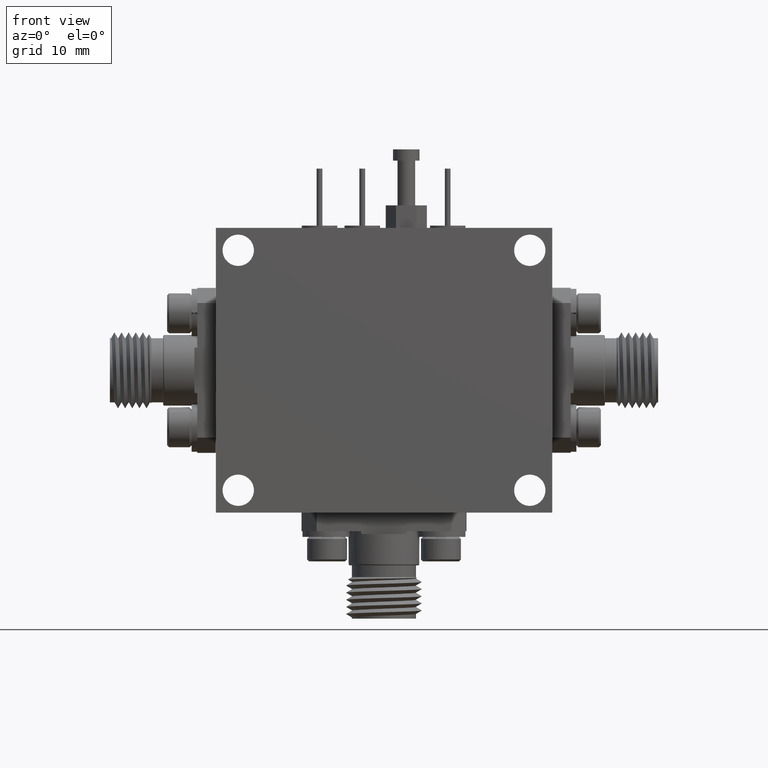
[diagram: clean part render]
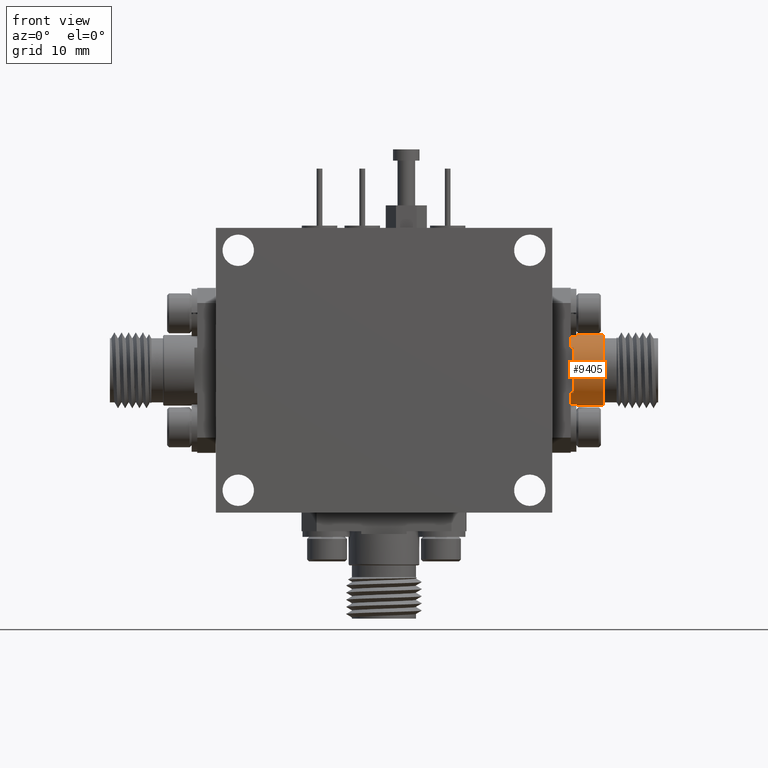
[diagram: same view with one face highlighted and labeled with its STEP entity id]
A machine part, front view. The second image highlights one B-rep face of the part: STEP entity #9405.
In plain terms, the highlighted cylindrical surface (edge-blend (fillet) strip) has radius 3.1496 mm, axis along (-1, -0, 0).
Its self-contained STEP definition (entity closure, byte-faithful):
#720 = CIRCLE ( 'NONE', #34275, 0.1240000000000001000 ) ;
#1110 = AXIS2_PLACEMENT_3D ( 'NONE', #14540, #37907, #2914 ) ;
#1407 = VERTEX_POINT ( 'NONE', #1951 ) ;
#1750 = CARTESIAN_POINT ( 'NONE',  ( 1.367303371765338400, 0.7257667375718607200, 0.6816370020797758400 ) ) ;
#1784 = CIRCLE ( 'NONE', #1110, 0.1240000000000001000 ) ;
#1951 = CARTESIAN_POINT ( 'NONE',  ( 1.262303371765338200, 0.6307667375718607500, 0.7259438405161891000 ) ) ;
#2914 = DIRECTION ( 'NONE',  ( 0.0000000000000000000, 0.0000000000000000000, 1.000000000000000000 ) ) ;
#3891 = EDGE_CURVE ( 'NONE', #15628, #34430, #1784, .T. ) ;
#4394 = EDGE_CURVE ( 'NONE', #1407, #18694, #15456, .T. ) ;
#4532 = CARTESIAN_POINT ( 'NONE',  ( 1.372303371765338600, 0.7257667375718607200, 0.8056370020797757300 ) ) ;
#4610 = VERTEX_POINT ( 'NONE', #14631 ) ;
#5019 = CIRCLE ( 'NONE', #7007, 0.1240000000000001000 ) ;
#6218 = CARTESIAN_POINT ( 'NONE',  ( 1.372303371765338600, 0.7257667375718607200, 0.6816370020797756200 ) ) ;
#6398 = EDGE_CURVE ( 'NONE', #25622, #1407, #35943, .T. ) ;
#6899 = ORIENTED_EDGE ( 'NONE', *, *, #35686, .T. ) ;
#7007 = AXIS2_PLACEMENT_3D ( 'NONE', #29577, #12490, #29830 ) ;
#7008 = LINE ( 'NONE', #8858, #13379 ) ;
#8322 = EDGE_LOOP ( 'NONE', ( #30479, #32490, #6899, #21213, #11049, #14585, #9088, #34266 ) ) ;
#8858 = CARTESIAN_POINT ( 'NONE',  ( 1.372303371765338600, 0.7257667375718607200, 0.9296370020797758400 ) ) ;
#9088 = ORIENTED_EDGE ( 'NONE', *, *, #30218, .T. ) ;
#9282 = FACE_OUTER_BOUND ( 'NONE', #8322, .T. ) ;
#9405 = ADVANCED_FACE ( 'NONE', ( #9282 ), #11098, .T. ) ;
#9620 = EDGE_CURVE ( 'NONE', #34430, #13027, #7008, .T. ) ;
#10101 = CARTESIAN_POINT ( 'NONE',  ( 1.252303371765338700, 0.7257667375718607200, 0.6816370020797761800 ) ) ;
#10215 = DIRECTION ( 'NONE',  ( -1.000000000000000000, -1.441177220735978800E-016, 6.106226635438362900E-016 ) ) ;
#10481 = CARTESIAN_POINT ( 'NONE',  ( 1.252303371765338200, 0.6307667375718607500, 0.7259438405161891000 ) ) ;
#11049 = ORIENTED_EDGE ( 'NONE', *, *, #6398, .T. ) ;
#11098 = CYLINDRICAL_SURFACE ( 'NONE', #25092, 0.1240000000000001000 ) ;
#12490 = DIRECTION ( 'NONE',  ( 1.000000000000000000, 1.441177220735978800E-016, -6.106226635438362900E-016 ) ) ;
#13027 = VERTEX_POINT ( 'NONE', #22808 ) ;
#13379 = VECTOR ( 'NONE', #37842, 39.37007874015748100 ) ;
#13598 = DIRECTION ( 'NONE',  ( -1.000000000000000000, -1.441177220735979100E-016, 6.106226635438362900E-016 ) ) ;
#13904 = EDGE_CURVE ( 'NONE', #25622, #4610, #15962, .T. ) ;
#14540 = CARTESIAN_POINT ( 'NONE',  ( 1.367303371765338400, 0.7257667375718607200, 0.8056370020797757300 ) ) ;
#14585 = ORIENTED_EDGE ( 'NONE', *, *, #4394, .T. ) ;
#14631 = CARTESIAN_POINT ( 'NONE',  ( 1.252303371765338500, 0.6307667375718607500, 0.8853301636433632500 ) ) ;
#15456 = LINE ( 'NONE', #34146, #33707 ) ;
#15628 = VERTEX_POINT ( 'NONE', #1750 ) ;
#15962 = LINE ( 'NONE', #22081, #28757 ) ;
#16013 = CARTESIAN_POINT ( 'NONE',  ( 1.367303371765338400, 0.7257667375718607200, 0.9296370020797757300 ) ) ;
#16166 = AXIS2_PLACEMENT_3D ( 'NONE', #21434, #27650, #19228 ) ;
#18694 = VERTEX_POINT ( 'NONE', #10481 ) ;
#19178 = EDGE_CURVE ( 'NONE', #15628, #32981, #36883, .T. ) ;
#19228 = DIRECTION ( 'NONE',  ( 0.0000000000000000000, 0.0000000000000000000, 1.000000000000000000 ) ) ;
#20466 = VECTOR ( 'NONE', #32377, 39.37007874015748100 ) ;
#21213 = ORIENTED_EDGE ( 'NONE', *, *, #13904, .F. ) ;
#21434 = CARTESIAN_POINT ( 'NONE',  ( 1.262303371765338200, 0.7257667375718607200, 0.8056370020797761800 ) ) ;
#22081 = CARTESIAN_POINT ( 'NONE',  ( 1.262303371765338200, 0.6307667375718607500, 0.8853301636433632500 ) ) ;
#22555 = DIRECTION ( 'NONE',  ( -1.000000000000000000, -1.441177220735978800E-016, 6.106226635438362900E-016 ) ) ;
#22808 = CARTESIAN_POINT ( 'NONE',  ( 1.252303371765338700, 0.7257667375718607200, 0.9296370020797761800 ) ) ;
#23386 = CARTESIAN_POINT ( 'NONE',  ( 1.252303371765338700, 0.7257667375718607200, 0.8056370020797761800 ) ) ;
#25092 = AXIS2_PLACEMENT_3D ( 'NONE', #4532, #13598, #33987 ) ;
#25622 = VERTEX_POINT ( 'NONE', #30254 ) ;
#27650 = DIRECTION ( 'NONE',  ( 1.000000000000000000, 1.441177220735978800E-016, -6.106226635438362900E-016 ) ) ;
#28757 = VECTOR ( 'NONE', #10215, 39.37007874015748100 ) ;
#29122 = DIRECTION ( 'NONE',  ( 1.000000000000000000, 1.441177220735978800E-016, -6.106226635438362900E-016 ) ) ;
#29577 = CARTESIAN_POINT ( 'NONE',  ( 1.252303371765338700, 0.7257667375718607200, 0.8056370020797761800 ) ) ;
#29830 = DIRECTION ( 'NONE',  ( 0.0000000000000000000, 0.0000000000000000000, 1.000000000000000000 ) ) ;
#30218 = EDGE_CURVE ( 'NONE', #18694, #32981, #5019, .T. ) ;
#30254 = CARTESIAN_POINT ( 'NONE',  ( 1.262303371765338200, 0.6307667375718607500, 0.8853301636433632500 ) ) ;
#30479 = ORIENTED_EDGE ( 'NONE', *, *, #3891, .T. ) ;
#32326 = DIRECTION ( 'NONE',  ( 0.0000000000000000000, 0.0000000000000000000, 1.000000000000000000 ) ) ;
#32377 = DIRECTION ( 'NONE',  ( -1.000000000000000000, -1.441177220735979100E-016, 6.106226635438362900E-016 ) ) ;
#32490 = ORIENTED_EDGE ( 'NONE', *, *, #9620, .T. ) ;
#32981 = VERTEX_POINT ( 'NONE', #10101 ) ;
#33707 = VECTOR ( 'NONE', #22555, 39.37007874015748100 ) ;
#33987 = DIRECTION ( 'NONE',  ( 0.0000000000000000000, 0.0000000000000000000, -1.000000000000000000 ) ) ;
#34146 = CARTESIAN_POINT ( 'NONE',  ( 1.262303371765338200, 0.6307667375718607500, 0.7259438405161891000 ) ) ;
#34266 = ORIENTED_EDGE ( 'NONE', *, *, #19178, .F. ) ;
#34275 = AXIS2_PLACEMENT_3D ( 'NONE', #23386, #29122, #32326 ) ;
#34430 = VERTEX_POINT ( 'NONE', #16013 ) ;
#35686 = EDGE_CURVE ( 'NONE', #13027, #4610, #720, .T. ) ;
#35943 = CIRCLE ( 'NONE', #16166, 0.1240000000000001000 ) ;
#36883 = LINE ( 'NONE', #6218, #20466 ) ;
#37842 = DIRECTION ( 'NONE',  ( -1.000000000000000000, -1.441177220735979100E-016, 6.106226635438362900E-016 ) ) ;
#37907 = DIRECTION ( 'NONE',  ( -1.000000000000000000, -1.441177220735978800E-016, 6.106226635438362900E-016 ) ) ;